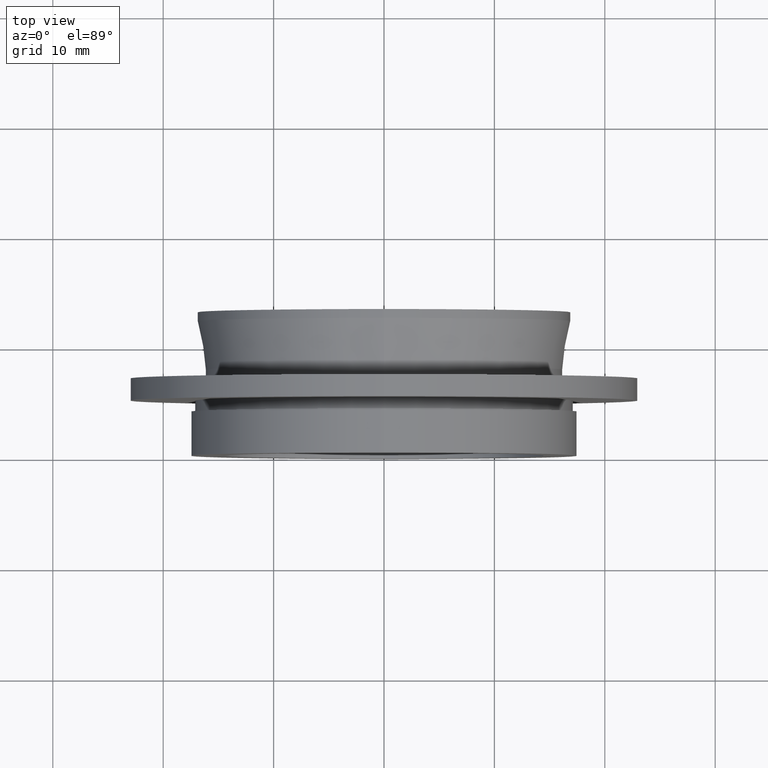
[diagram: clean part render]
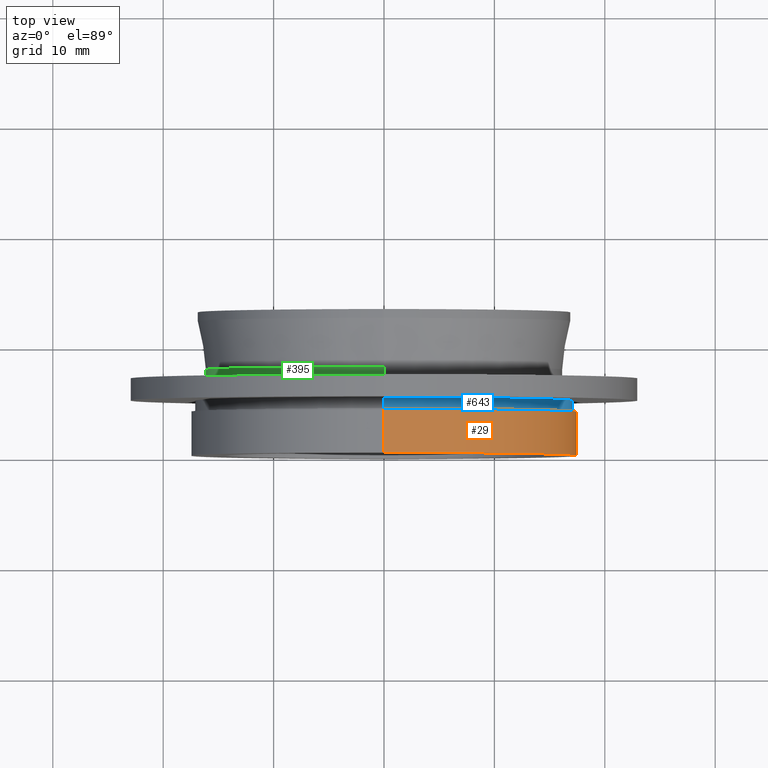
[diagram: same view with three faces highlighted in distinct colors, each labeled with its STEP entity id]
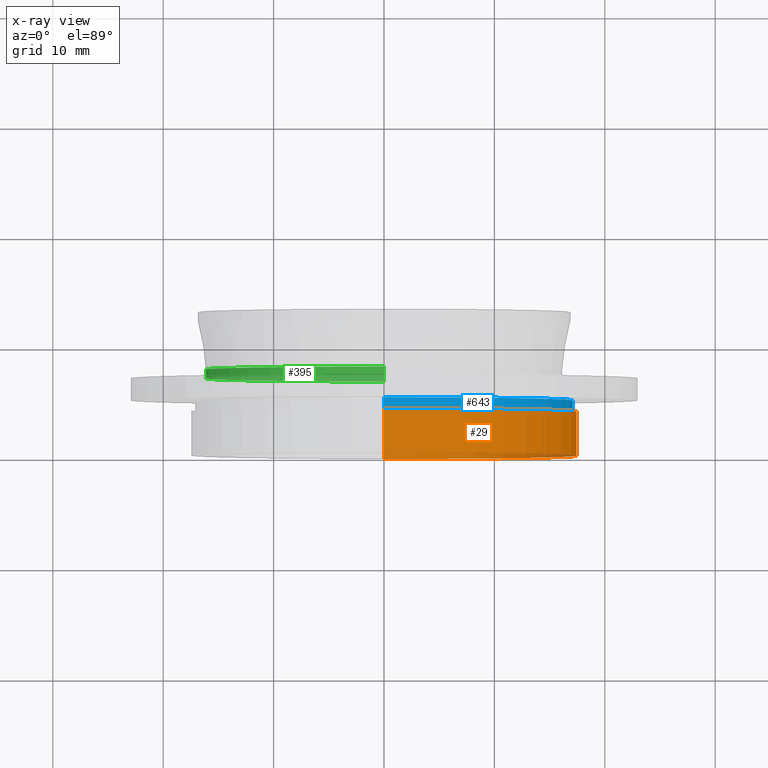
[diagram: x-ray of the same camera — body ghosted, the three highlighted faces saturated]
A machine part, top view with three faces highlighted in distinct colors.
The next image is the same camera in x-ray (body ghosted, the three faces saturated) — at least one of them is partly hidden behind the body in this view.
Their STEP definitions:

[orange] entity #29 — the highlighted cylindrical surface (partial cylindrical patch) has radius 17.5 mm, axis along (-0, -1, -0).
#1 = DIRECTION ( 'NONE',  ( -0.0000000000000000000, -1.000000000000000000, -0.0000000000000000000 ) ) ;
#17 = ORIENTED_EDGE ( 'NONE', *, *, #64, .T. ) ;
#28 = ORIENTED_EDGE ( 'NONE', *, *, #476, .F. ) ;
#29 = ADVANCED_FACE ( 'NONE', ( #321 ), #587, .T. ) ;
#33 = VECTOR ( 'NONE', #1, 1000.000000000000000 ) ;
#50 = VERTEX_POINT ( 'NONE', #220 ) ;
#64 = EDGE_CURVE ( 'NONE', #348, #50, #622, .T. ) ;
#69 = CARTESIAN_POINT ( 'NONE',  ( 0.0000000000000000000, 3.999999999999997300, 0.0000000000000000000 ) ) ;
#81 = CIRCLE ( 'NONE', #485, 17.50000000000000000 ) ;
#115 = CARTESIAN_POINT ( 'NONE',  ( 0.0000000000000000000, -3.508329487826542300E-015, -17.50000000000000000 ) ) ;
#189 = AXIS2_PLACEMENT_3D ( 'NONE', #69, #417, #428 ) ;
#201 = CARTESIAN_POINT ( 'NONE',  ( 0.0000000000000000000, 0.0000000000000000000, -17.50000000000000000 ) ) ;
#203 = DIRECTION ( 'NONE',  ( 0.0000000000000000000, 0.0000000000000000000, -1.000000000000000000 ) ) ;
#204 = DIRECTION ( 'NONE',  ( -0.0000000000000000000, -1.000000000000000000, -0.0000000000000000000 ) ) ;
#220 = CARTESIAN_POINT ( 'NONE',  ( 2.143131898507868200E-015, 3.999999999999997300, 17.50000000000000000 ) ) ;
#294 = EDGE_LOOP ( 'NONE', ( #17, #566, #28, #582 ) ) ;
#321 = FACE_OUTER_BOUND ( 'NONE', #294, .T. ) ;
#348 = VERTEX_POINT ( 'NONE', #551 ) ;
#375 = VERTEX_POINT ( 'NONE', #661 ) ;
#404 = CARTESIAN_POINT ( 'NONE',  ( 0.0000000000000000000, -3.508329487826542300E-015, 0.0000000000000000000 ) ) ;
#409 = DIRECTION ( 'NONE',  ( 0.0000000000000000000, 0.0000000000000000000, -1.000000000000000000 ) ) ;
#417 = DIRECTION ( 'NONE',  ( -0.0000000000000000000, -1.000000000000000000, -0.0000000000000000000 ) ) ;
#428 = DIRECTION ( 'NONE',  ( 0.0000000000000000000, 0.0000000000000000000, -1.000000000000000000 ) ) ;
#473 = VECTOR ( 'NONE', #577, 1000.000000000000000 ) ;
#476 = EDGE_CURVE ( 'NONE', #642, #375, #81, .T. ) ;
#485 = AXIS2_PLACEMENT_3D ( 'NONE', #404, #204, #409 ) ;
#506 = CARTESIAN_POINT ( 'NONE',  ( 2.143131898507868200E-015, 0.0000000000000000000, 17.50000000000000000 ) ) ;
#523 = CARTESIAN_POINT ( 'NONE',  ( 0.0000000000000000000, 0.0000000000000000000, 0.0000000000000000000 ) ) ;
#551 = CARTESIAN_POINT ( 'NONE',  ( 0.0000000000000000000, 3.999999999999997300, -17.50000000000000000 ) ) ;
#552 = EDGE_CURVE ( 'NONE', #348, #642, #613, .T. ) ;
#566 = ORIENTED_EDGE ( 'NONE', *, *, #590, .T. ) ;
#577 = DIRECTION ( 'NONE',  ( -0.0000000000000000000, -1.000000000000000000, -0.0000000000000000000 ) ) ;
#582 = ORIENTED_EDGE ( 'NONE', *, *, #552, .F. ) ;
#587 = CYLINDRICAL_SURFACE ( 'NONE', #607, 17.50000000000000000 ) ;
#590 = EDGE_CURVE ( 'NONE', #50, #375, #603, .T. ) ;
#603 = LINE ( 'NONE', #506, #33 ) ;
#607 = AXIS2_PLACEMENT_3D ( 'NONE', #523, #626, #203 ) ;
#613 = LINE ( 'NONE', #201, #473 ) ;
#622 = CIRCLE ( 'NONE', #189, 17.50000000000000000 ) ;
#626 = DIRECTION ( 'NONE',  ( -0.0000000000000000000, -1.000000000000000000, -0.0000000000000000000 ) ) ;
#642 = VERTEX_POINT ( 'NONE', #115 ) ;
#661 = CARTESIAN_POINT ( 'NONE',  ( 2.143131898507868200E-015, -3.508329487826542300E-015, 17.50000000000000000 ) ) ;

[blue] entity #643 — the highlighted cylindrical surface (partial cylindrical patch) has radius 17.1 mm, axis along (-0, -1, -0).
#4 = CARTESIAN_POINT ( 'NONE',  ( 2.094146026541974000E-015, 0.0000000000000000000, 17.10000000000000100 ) ) ;
#46 = EDGE_CURVE ( 'NONE', #118, #142, #406, .T. ) ;
#57 = DIRECTION ( 'NONE',  ( -0.0000000000000000000, -1.000000000000000000, -0.0000000000000000000 ) ) ;
#60 = CIRCLE ( 'NONE', #267, 17.10000000000000100 ) ;
#75 = CARTESIAN_POINT ( 'NONE',  ( 0.0000000000000000000, 3.999999999999998200, -17.10000000000000100 ) ) ;
#82 = LINE ( 'NONE', #288, #516 ) ;
#94 = EDGE_CURVE ( 'NONE', #666, #118, #640, .T. ) ;
#114 = FACE_OUTER_BOUND ( 'NONE', #548, .T. ) ;
#117 = DIRECTION ( 'NONE',  ( -0.0000000000000000000, -1.000000000000000000, -0.0000000000000000000 ) ) ;
#118 = VERTEX_POINT ( 'NONE', #588 ) ;
#142 = VERTEX_POINT ( 'NONE', #541 ) ;
#167 = DIRECTION ( 'NONE',  ( 0.0000000000000000000, 0.0000000000000000000, -1.000000000000000000 ) ) ;
#182 = DIRECTION ( 'NONE',  ( -0.0000000000000000000, -1.000000000000000000, -0.0000000000000000000 ) ) ;
#183 = DIRECTION ( 'NONE',  ( -0.0000000000000000000, -1.000000000000000000, -0.0000000000000000000 ) ) ;
#192 = VECTOR ( 'NONE', #57, 1000.000000000000000 ) ;
#205 = AXIS2_PLACEMENT_3D ( 'NONE', #471, #117, #167 ) ;
#224 = VERTEX_POINT ( 'NONE', #75 ) ;
#234 = EDGE_CURVE ( 'NONE', #224, #142, #60, .T. ) ;
#267 = AXIS2_PLACEMENT_3D ( 'NONE', #439, #182, #601 ) ;
#278 = EDGE_CURVE ( 'NONE', #666, #224, #82, .T. ) ;
#288 = CARTESIAN_POINT ( 'NONE',  ( 0.0000000000000000000, 0.0000000000000000000, -17.10000000000000100 ) ) ;
#316 = CARTESIAN_POINT ( 'NONE',  ( 0.0000000000000000000, 4.999999999999998200, -17.10000000000000100 ) ) ;
#337 = ORIENTED_EDGE ( 'NONE', *, *, #46, .T. ) ;
#406 = LINE ( 'NONE', #4, #192 ) ;
#426 = ORIENTED_EDGE ( 'NONE', *, *, #278, .F. ) ;
#435 = CYLINDRICAL_SURFACE ( 'NONE', #505, 17.10000000000000100 ) ;
#439 = CARTESIAN_POINT ( 'NONE',  ( 0.0000000000000000000, 3.999999999999998200, 0.0000000000000000000 ) ) ;
#461 = DIRECTION ( 'NONE',  ( 0.0000000000000000000, 0.0000000000000000000, -1.000000000000000000 ) ) ;
#471 = CARTESIAN_POINT ( 'NONE',  ( 0.0000000000000000000, 4.999999999999998200, 0.0000000000000000000 ) ) ;
#505 = AXIS2_PLACEMENT_3D ( 'NONE', #663, #617, #461 ) ;
#516 = VECTOR ( 'NONE', #183, 1000.000000000000000 ) ;
#541 = CARTESIAN_POINT ( 'NONE',  ( 2.094146026541974000E-015, 3.999999999999998200, 17.10000000000000100 ) ) ;
#548 = EDGE_LOOP ( 'NONE', ( #572, #337, #597, #426 ) ) ;
#572 = ORIENTED_EDGE ( 'NONE', *, *, #94, .T. ) ;
#588 = CARTESIAN_POINT ( 'NONE',  ( 2.094146026541974000E-015, 4.999999999999998200, 17.10000000000000100 ) ) ;
#597 = ORIENTED_EDGE ( 'NONE', *, *, #234, .F. ) ;
#601 = DIRECTION ( 'NONE',  ( 0.0000000000000000000, 0.0000000000000000000, -1.000000000000000000 ) ) ;
#617 = DIRECTION ( 'NONE',  ( -0.0000000000000000000, -1.000000000000000000, -0.0000000000000000000 ) ) ;
#640 = CIRCLE ( 'NONE', #205, 17.10000000000000100 ) ;
#643 = ADVANCED_FACE ( 'NONE', ( #114 ), #435, .T. ) ;
#663 = CARTESIAN_POINT ( 'NONE',  ( 0.0000000000000000000, 0.0000000000000000000, 0.0000000000000000000 ) ) ;
#666 = VERTEX_POINT ( 'NONE', #316 ) ;

[green] entity #395 — the highlighted cylindrical surface (partial cylindrical patch) has radius 16.135 mm, axis along (-0, -1, -0).
#19 = CARTESIAN_POINT ( 'NONE',  ( 1.975967610424255000E-015, 6.999999999999998200, 16.13500000000000500 ) ) ;
#31 = AXIS2_PLACEMENT_3D ( 'NONE', #266, #631, #159 ) ;
#39 = DIRECTION ( 'NONE',  ( 0.0000000000000000000, 0.0000000000000000000, -1.000000000000000000 ) ) ;
#54 = EDGE_LOOP ( 'NONE', ( #477, #109, #615, #193 ) ) ;
#89 = CARTESIAN_POINT ( 'NONE',  ( 0.0000000000000000000, 7.799999999999998900, 16.13500000000001200 ) ) ;
#99 = FACE_OUTER_BOUND ( 'NONE', #54, .T. ) ;
#109 = ORIENTED_EDGE ( 'NONE', *, *, #619, .T. ) ;
#138 = CARTESIAN_POINT ( 'NONE',  ( 0.0000000000000000000, 6.999999999999998200, 0.0000000000000000000 ) ) ;
#140 = CYLINDRICAL_SURFACE ( 'NONE', #427, 16.13500000000000900 ) ;
#149 = CARTESIAN_POINT ( 'NONE',  ( 0.0000000000000000000, 0.0000000000000000000, -16.13500000000000900 ) ) ;
#159 = DIRECTION ( 'NONE',  ( 0.0000000000000000000, 0.0000000000000000000, -1.000000000000000000 ) ) ;
#185 = CIRCLE ( 'NONE', #31, 16.13500000000001200 ) ;
#193 = ORIENTED_EDGE ( 'NONE', *, *, #356, .F. ) ;
#194 = VERTEX_POINT ( 'NONE', #19 ) ;
#239 = DIRECTION ( 'NONE',  ( -0.0000000000000000000, -1.000000000000000000, -0.0000000000000000000 ) ) ;
#247 = CARTESIAN_POINT ( 'NONE',  ( 1.975967610424255000E-015, 0.0000000000000000000, 16.13500000000000900 ) ) ;
#257 = DIRECTION ( 'NONE',  ( -0.0000000000000000000, -1.000000000000000000, -0.0000000000000000000 ) ) ;
#266 = CARTESIAN_POINT ( 'NONE',  ( 0.0000000000000000000, 7.799999999999998900, 0.0000000000000000000 ) ) ;
#313 = VERTEX_POINT ( 'NONE', #544 ) ;
#353 = AXIS2_PLACEMENT_3D ( 'NONE', #138, #555, #653 ) ;
#356 = EDGE_CURVE ( 'NONE', #194, #313, #571, .T. ) ;
#368 = CARTESIAN_POINT ( 'NONE',  ( 2.020667218593133100E-015, 7.799999999999998900, -16.13500000000001200 ) ) ;
#395 = ADVANCED_FACE ( 'NONE', ( #99 ), #140, .T. ) ;
#398 = VECTOR ( 'NONE', #257, 1000.000000000000000 ) ;
#427 = AXIS2_PLACEMENT_3D ( 'NONE', #559, #239, #39 ) ;
#453 = DIRECTION ( 'NONE',  ( -0.0000000000000000000, -1.000000000000000000, -0.0000000000000000000 ) ) ;
#455 = LINE ( 'NONE', #149, #398 ) ;
#459 = EDGE_CURVE ( 'NONE', #463, #194, #490, .T. ) ;
#463 = VERTEX_POINT ( 'NONE', #89 ) ;
#477 = ORIENTED_EDGE ( 'NONE', *, *, #459, .F. ) ;
#490 = LINE ( 'NONE', #247, #527 ) ;
#527 = VECTOR ( 'NONE', #453, 1000.000000000000000 ) ;
#544 = CARTESIAN_POINT ( 'NONE',  ( 0.0000000000000000000, 6.999999999999998200, -16.13500000000000500 ) ) ;
#549 = EDGE_CURVE ( 'NONE', #665, #313, #455, .T. ) ;
#555 = DIRECTION ( 'NONE',  ( -0.0000000000000000000, -1.000000000000000000, -0.0000000000000000000 ) ) ;
#559 = CARTESIAN_POINT ( 'NONE',  ( 0.0000000000000000000, 0.0000000000000000000, 0.0000000000000000000 ) ) ;
#571 = CIRCLE ( 'NONE', #353, 16.13500000000000500 ) ;
#615 = ORIENTED_EDGE ( 'NONE', *, *, #549, .T. ) ;
#619 = EDGE_CURVE ( 'NONE', #463, #665, #185, .T. ) ;
#631 = DIRECTION ( 'NONE',  ( -0.0000000000000000000, -1.000000000000000000, -0.0000000000000000000 ) ) ;
#653 = DIRECTION ( 'NONE',  ( 0.0000000000000000000, 0.0000000000000000000, -1.000000000000000000 ) ) ;
#665 = VERTEX_POINT ( 'NONE', #368 ) ;